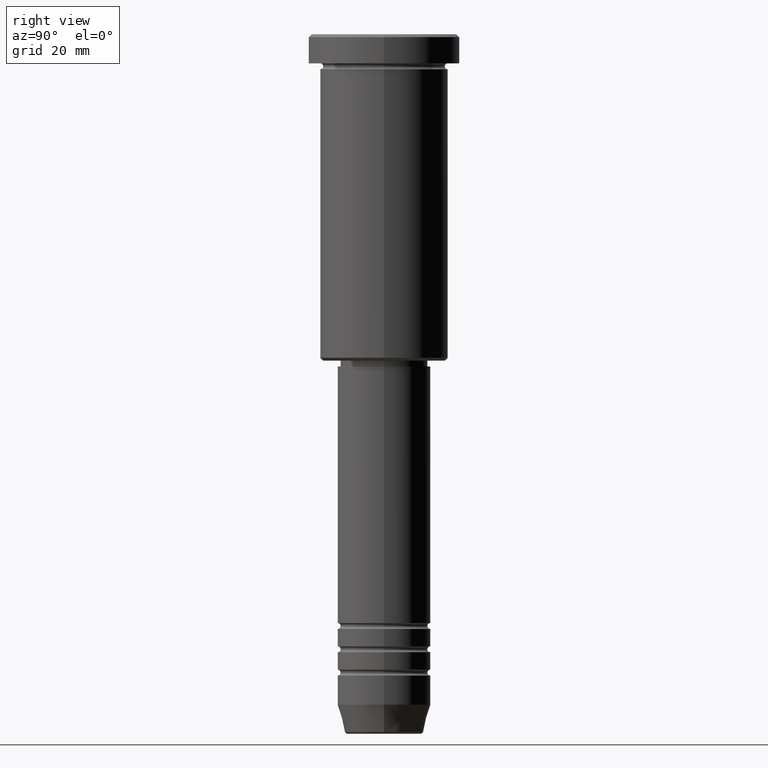
[diagram: clean part render]
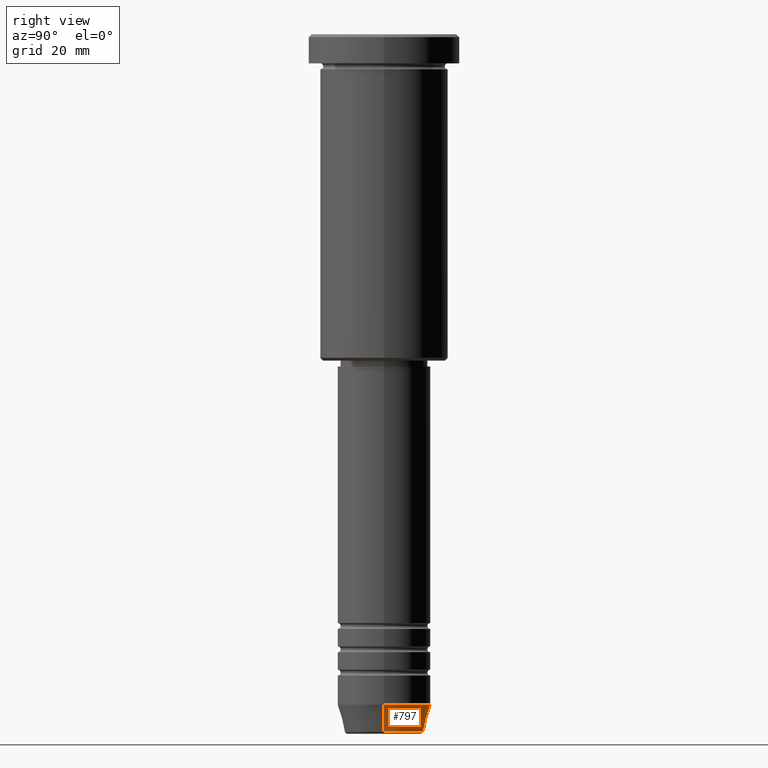
[diagram: same view with one face highlighted and labeled with its STEP entity id]
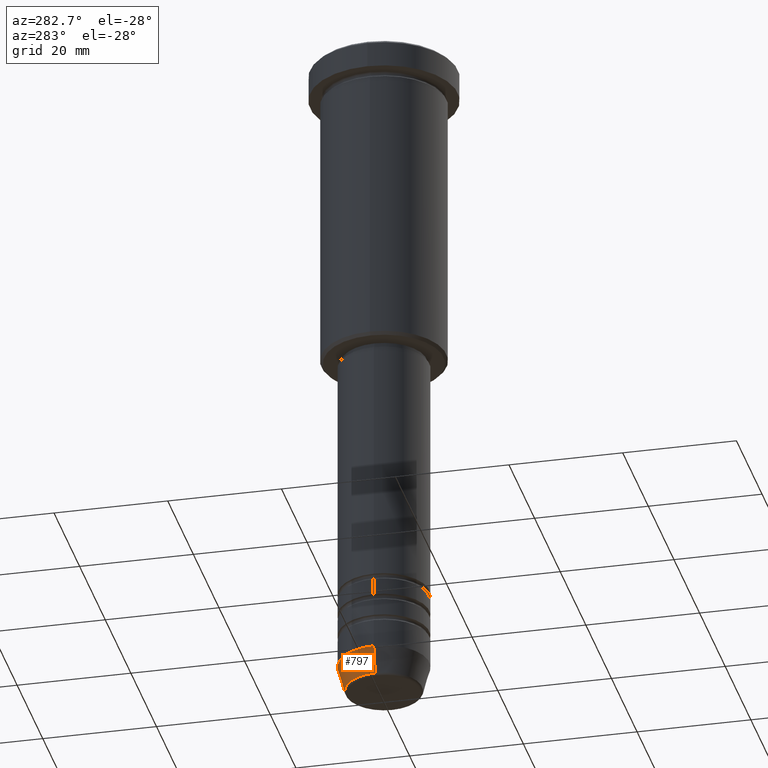
[diagram: same view with one face highlighted and labeled with its STEP entity id]
A machine part, right view. The second image highlights one B-rep face of the part: STEP entity #797.
A second angle (auxiliary view) of the same face is appended — the face is thin or edge-on in the first view.
In plain terms, the highlighted conical surface has half-angle 15 deg.
Its self-contained STEP definition (entity closure, byte-faithful):
#24 = ORIENTED_EDGE ( 'NONE', *, *, #268, .T. ) ;
#94 = DIRECTION ( 'NONE',  ( -0.2588190451025214611, 3.169619151431774186E-17, 0.9659258262890679791 ) ) ;
#113 = CARTESIAN_POINT ( 'NONE',  ( 0.000000000000000000, 0.000000000000000000, -114.9999999999999858 ) ) ;
#130 = VERTEX_POINT ( 'NONE', #808 ) ;
#140 = CONICAL_SURFACE ( 'NONE', #1149, 8.000000000000000000, 0.2617993877991502405 ) ;
#153 = ORIENTED_EDGE ( 'NONE', *, *, #761, .T. ) ;
#250 = DIRECTION ( 'NONE',  ( -0.000000000000000000, -0.000000000000000000, 1.000000000000000000 ) ) ;
#268 = EDGE_CURVE ( 'NONE', #1107, #130, #1049, .T. ) ;
#287 = DIRECTION ( 'NONE',  ( 1.000000000000000000, 0.000000000000000000, 0.000000000000000000 ) ) ;
#294 = CIRCLE ( 'NONE', #1046, 8.000000000000000000 ) ;
#342 = CARTESIAN_POINT ( 'NONE',  ( 8.000000000000000000, 0.000000000000000000, -114.9999999999999858 ) ) ;
#356 = EDGE_CURVE ( 'NONE', #969, #683, #781, .T. ) ;
#400 = ORIENTED_EDGE ( 'NONE', *, *, #529, .F. ) ;
#473 = DIRECTION ( 'NONE',  ( -0.000000000000000000, -0.000000000000000000, 1.000000000000000000 ) ) ;
#494 = DIRECTION ( 'NONE',  ( 1.000000000000000000, 0.000000000000000000, 0.000000000000000000 ) ) ;
#529 = EDGE_CURVE ( 'NONE', #683, #130, #294, .T. ) ;
#600 = CARTESIAN_POINT ( 'NONE',  ( 0.000000000000000000, 0.000000000000000000, -114.9999999999999858 ) ) ;
#639 = CARTESIAN_POINT ( 'NONE',  ( 6.759553456999436882, 0.000000000000000000, -119.6294095225512564 ) ) ;
#640 = EDGE_LOOP ( 'NONE', ( #153, #24, #400, #679 ) ) ;
#649 = VECTOR ( 'NONE', #1135, 1000.000000000000114 ) ;
#660 = DIRECTION ( 'NONE',  ( -0.000000000000000000, -0.000000000000000000, 1.000000000000000000 ) ) ;
#679 = ORIENTED_EDGE ( 'NONE', *, *, #356, .F. ) ;
#683 = VERTEX_POINT ( 'NONE', #758 ) ;
#720 = AXIS2_PLACEMENT_3D ( 'NONE', #1038, #250, #1180 ) ;
#758 = CARTESIAN_POINT ( 'NONE',  ( 8.000000000000000000, 0.000000000000000000, -114.9999999999999858 ) ) ;
#761 = EDGE_CURVE ( 'NONE', #969, #1107, #840, .T. ) ;
#781 = LINE ( 'NONE', #342, #649 ) ;
#797 = ADVANCED_FACE ( 'NONE', ( #920 ), #140, .T. ) ;
#808 = CARTESIAN_POINT ( 'NONE',  ( -8.000000000000000000, 9.797174393178825657E-16, -114.9999999999999858 ) ) ;
#840 = CIRCLE ( 'NONE', #720, 6.759553456999436882 ) ;
#861 = CARTESIAN_POINT ( 'NONE',  ( -8.000000000000000000, 9.797174393178825657E-16, -114.9999999999999858 ) ) ;
#920 = FACE_OUTER_BOUND ( 'NONE', #640, .T. ) ;
#969 = VERTEX_POINT ( 'NONE', #639 ) ;
#1038 = CARTESIAN_POINT ( 'NONE',  ( 0.000000000000000000, 0.000000000000000000, -119.6294095225512564 ) ) ;
#1039 = CARTESIAN_POINT ( 'NONE',  ( -6.759553456999437770, 9.037619948979306213E-16, -119.6294095225512564 ) ) ;
#1046 = AXIS2_PLACEMENT_3D ( 'NONE', #113, #660, #494 ) ;
#1049 = LINE ( 'NONE', #861, #1096 ) ;
#1096 = VECTOR ( 'NONE', #94, 1000.000000000000114 ) ;
#1107 = VERTEX_POINT ( 'NONE', #1039 ) ;
#1135 = DIRECTION ( 'NONE',  ( 0.2588190451025214611, 0.000000000000000000, 0.9659258262890679791 ) ) ;
#1149 = AXIS2_PLACEMENT_3D ( 'NONE', #600, #473, #287 ) ;
#1180 = DIRECTION ( 'NONE',  ( 1.000000000000000000, 0.000000000000000000, 0.000000000000000000 ) ) ;